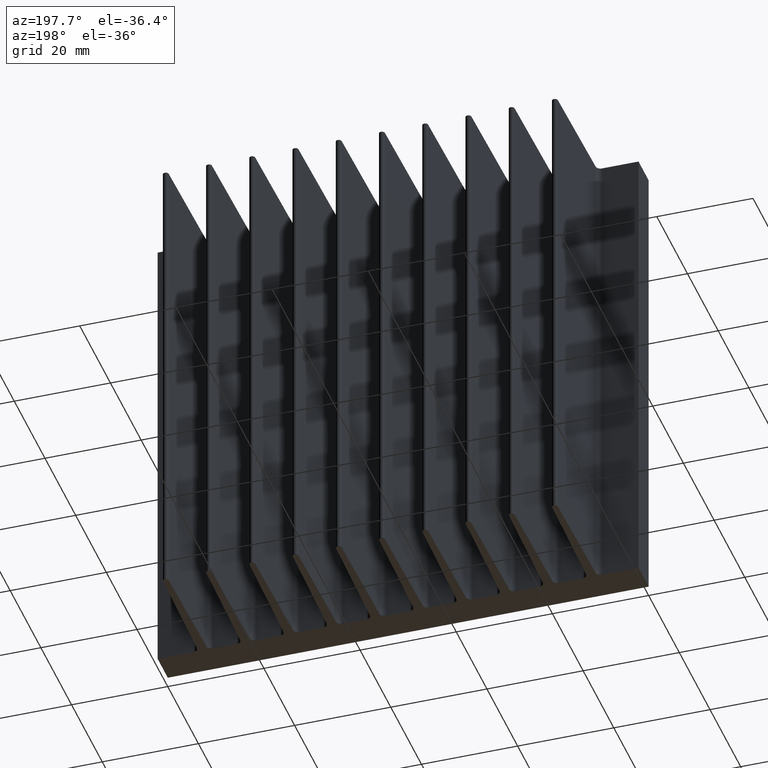
[diagram: clean part render]
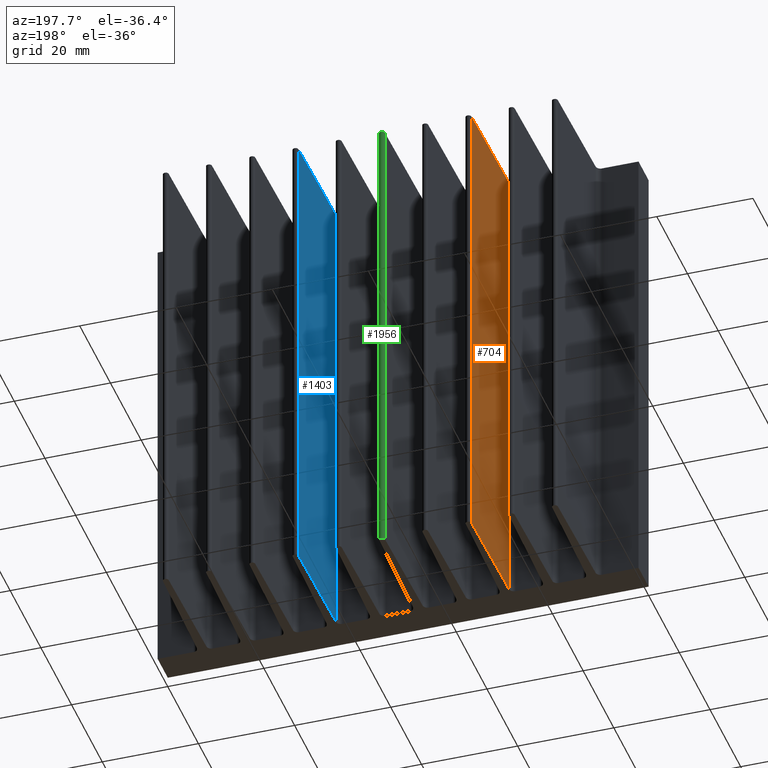
[diagram: same view with three faces highlighted in distinct colors, each labeled with its STEP entity id]
A machine part, auxiliary view with three faces highlighted in distinct colors.
Their STEP definitions:

[orange] entity #704 — the highlighted planar face has unit normal (0.9999, -0.0164, 0).
#45 = DIRECTION ( 'NONE',  ( 0.01639124023930081317, 0.9998656545973652054, 0.0000000000000000000 ) ) ;
#119 = CARTESIAN_POINT ( 'NONE',  ( 26.58467339657067541, 7.576534462238220691, 50.00000000000000000 ) ) ;
#144 = VERTEX_POINT ( 'NONE', #1369 ) ;
#151 = LINE ( 'NONE', #2143, #526 ) ;
#219 = DIRECTION ( 'NONE',  ( -0.01639124023930081317, -0.9998656545973652054, 0.0000000000000000000 ) ) ;
#251 = CARTESIAN_POINT ( 'NONE',  ( 26.96819057020473664, 30.97108205391636204, -50.00000000000000000 ) ) ;
#312 = VERTEX_POINT ( 'NONE', #119 ) ;
#526 = VECTOR ( 'NONE', #1331, 1000.000000000000000 ) ;
#559 = LINE ( 'NONE', #1119, #839 ) ;
#620 = ORIENTED_EDGE ( 'NONE', *, *, #1496, .T. ) ;
#628 = DIRECTION ( 'NONE',  ( 0.9998656545973652054, -0.01639124023930081317, 0.0000000000000000000 ) ) ;
#639 = PLANE ( 'NONE',  #741 ) ;
#640 = ORIENTED_EDGE ( 'NONE', *, *, #1024, .F. ) ;
#655 = EDGE_LOOP ( 'NONE', ( #818, #1891, #640, #620 ) ) ;
#704 = ADVANCED_FACE ( 'NONE', ( #793 ), #639, .F. ) ;
#741 = AXIS2_PLACEMENT_3D ( 'NONE', #831, #628, #45 ) ;
#793 = FACE_OUTER_BOUND ( 'NONE', #655, .T. ) ;
#818 = ORIENTED_EDGE ( 'NONE', *, *, #1174, .T. ) ;
#831 = CARTESIAN_POINT ( 'NONE',  ( 26.96819057020473664, 30.97108205391636204, 50.00000000000000000 ) ) ;
#839 = VECTOR ( 'NONE', #1317, 1000.000000000000000 ) ;
#1005 = CARTESIAN_POINT ( 'NONE',  ( 26.96819057020473309, 30.97108205391636204, -50.00000000000000000 ) ) ;
#1024 = EDGE_CURVE ( 'NONE', #144, #312, #559, .T. ) ;
#1111 = LINE ( 'NONE', #2105, #1981 ) ;
#1119 = CARTESIAN_POINT ( 'NONE',  ( 26.96819057020473664, 30.97108205391636204, 50.00000000000000000 ) ) ;
#1174 = EDGE_CURVE ( 'NONE', #2159, #1492, #1935, .T. ) ;
#1215 = VECTOR ( 'NONE', #219, 1000.000000000000000 ) ;
#1317 = DIRECTION ( 'NONE',  ( -0.01639124023930081317, -0.9998656545973652054, 0.0000000000000000000 ) ) ;
#1331 = DIRECTION ( 'NONE',  ( -0.0000000000000000000, -0.0000000000000000000, -1.000000000000000000 ) ) ;
#1369 = CARTESIAN_POINT ( 'NONE',  ( 26.96819057020473309, 30.97108205391636204, 50.00000000000000000 ) ) ;
#1472 = EDGE_CURVE ( 'NONE', #312, #1492, #151, .T. ) ;
#1492 = VERTEX_POINT ( 'NONE', #2019 ) ;
#1496 = EDGE_CURVE ( 'NONE', #144, #2159, #1111, .T. ) ;
#1891 = ORIENTED_EDGE ( 'NONE', *, *, #1472, .F. ) ;
#1935 = LINE ( 'NONE', #251, #1215 ) ;
#1981 = VECTOR ( 'NONE', #2088, 1000.000000000000000 ) ;
#2019 = CARTESIAN_POINT ( 'NONE',  ( 26.58467339657067541, 7.576534462238220691, -50.00000000000000000 ) ) ;
#2088 = DIRECTION ( 'NONE',  ( -0.0000000000000000000, -0.0000000000000000000, -1.000000000000000000 ) ) ;
#2105 = CARTESIAN_POINT ( 'NONE',  ( 26.96819057020473309, 30.97108205391636204, 50.00000000000000000 ) ) ;
#2143 = CARTESIAN_POINT ( 'NONE',  ( 26.58467339657067541, 7.576534462238220691, 50.00000000000000000 ) ) ;
#2159 = VERTEX_POINT ( 'NONE', #1005 ) ;

[blue] entity #1403 — the highlighted planar face has unit normal (0.9999, -0.0164, 0).
#101 = CARTESIAN_POINT ( 'NONE',  ( 62.93460848062814961, 30.97108205391634783, 50.00000000000000000 ) ) ;
#195 = CARTESIAN_POINT ( 'NONE',  ( 62.93460848062814961, 30.97108205391634783, -50.00000000000000000 ) ) ;
#228 = ORIENTED_EDGE ( 'NONE', *, *, #1639, .F. ) ;
#297 = LINE ( 'NONE', #1982, #827 ) ;
#475 = DIRECTION ( 'NONE',  ( 0.9998656545973652054, -0.01639124023930036908, 0.0000000000000000000 ) ) ;
#493 = PLANE ( 'NONE',  #877 ) ;
#519 = DIRECTION ( 'NONE',  ( -0.01639124023930036561, -0.9998656545973652054, 0.0000000000000000000 ) ) ;
#536 = CARTESIAN_POINT ( 'NONE',  ( 62.93460848062814961, 30.97108205391634783, -50.00000000000000000 ) ) ;
#827 = VECTOR ( 'NONE', #1895, 1000.000000000000000 ) ;
#840 = ORIENTED_EDGE ( 'NONE', *, *, #1765, .T. ) ;
#877 = AXIS2_PLACEMENT_3D ( 'NONE', #1206, #475, #2209 ) ;
#957 = VECTOR ( 'NONE', #1117, 1000.000000000000000 ) ;
#974 = EDGE_LOOP ( 'NONE', ( #840, #228, #1677, #1801 ) ) ;
#1009 = FACE_OUTER_BOUND ( 'NONE', #974, .T. ) ;
#1037 = VECTOR ( 'NONE', #1793, 1000.000000000000114 ) ;
#1117 = DIRECTION ( 'NONE',  ( -0.0000000000000000000, -0.0000000000000000000, -1.000000000000000000 ) ) ;
#1165 = LINE ( 'NONE', #1762, #1037 ) ;
#1206 = CARTESIAN_POINT ( 'NONE',  ( 62.93460848062814961, 30.97108205391634783, 50.00000000000000000 ) ) ;
#1222 = CARTESIAN_POINT ( 'NONE',  ( 62.55109130699410258, 7.576534462238203815, 50.00000000000000000 ) ) ;
#1223 = VERTEX_POINT ( 'NONE', #101 ) ;
#1224 = LINE ( 'NONE', #536, #1277 ) ;
#1274 = CARTESIAN_POINT ( 'NONE',  ( 62.55109130699410258, 7.576534462238203815, -50.00000000000000000 ) ) ;
#1277 = VECTOR ( 'NONE', #519, 1000.000000000000114 ) ;
#1358 = VERTEX_POINT ( 'NONE', #1274 ) ;
#1403 = ADVANCED_FACE ( 'NONE', ( #1009 ), #493, .F. ) ;
#1516 = EDGE_CURVE ( 'NONE', #1223, #2131, #297, .T. ) ;
#1533 = VERTEX_POINT ( 'NONE', #1922 ) ;
#1560 = EDGE_CURVE ( 'NONE', #1223, #1533, #1165, .T. ) ;
#1615 = LINE ( 'NONE', #1222, #957 ) ;
#1639 = EDGE_CURVE ( 'NONE', #1533, #1358, #1615, .T. ) ;
#1677 = ORIENTED_EDGE ( 'NONE', *, *, #1560, .F. ) ;
#1762 = CARTESIAN_POINT ( 'NONE',  ( 62.93460848062814961, 30.97108205391634783, 50.00000000000000000 ) ) ;
#1765 = EDGE_CURVE ( 'NONE', #2131, #1358, #1224, .T. ) ;
#1793 = DIRECTION ( 'NONE',  ( -0.01639124023930036561, -0.9998656545973652054, 0.0000000000000000000 ) ) ;
#1801 = ORIENTED_EDGE ( 'NONE', *, *, #1516, .T. ) ;
#1895 = DIRECTION ( 'NONE',  ( -0.0000000000000000000, -0.0000000000000000000, -1.000000000000000000 ) ) ;
#1922 = CARTESIAN_POINT ( 'NONE',  ( 62.55109130699410258, 7.576534462238203815, 50.00000000000000000 ) ) ;
#1982 = CARTESIAN_POINT ( 'NONE',  ( 62.93460848062814961, 30.97108205391634783, 50.00000000000000000 ) ) ;
#2131 = VERTEX_POINT ( 'NONE', #195 ) ;
#2209 = DIRECTION ( 'NONE',  ( 0.01639124023930036908, 0.9998656545973652054, 0.0000000000000000000 ) ) ;

[green] entity #1956 — the highlighted cylindrical surface (edge-blend (fillet) strip) has radius 0.5994 mm, axis along (-0, -0, -1).
#191 = CARTESIAN_POINT ( 'NONE',  ( 46.15028012243057987, 30.97108205391667468, 50.00000000000000000 ) ) ;
#246 = DIRECTION ( 'NONE',  ( 1.000000000000000000, 0.0000000000000000000, 0.0000000000000000000 ) ) ;
#257 = EDGE_CURVE ( 'NONE', #1839, #528, #1185, .T. ) ;
#263 = DIRECTION ( 'NONE',  ( 0.0000000000000000000, 0.0000000000000000000, 1.000000000000000000 ) ) ;
#335 = VECTOR ( 'NONE', #1289, 1000.000000000000000 ) ;
#391 = AXIS2_PLACEMENT_3D ( 'NONE', #2182, #2162, #2141 ) ;
#528 = VERTEX_POINT ( 'NONE', #1452 ) ;
#541 = CIRCLE ( 'NONE', #391, 0.5994402985070799161 ) ;
#625 = ORIENTED_EDGE ( 'NONE', *, *, #991, .T. ) ;
#626 = EDGE_LOOP ( 'NONE', ( #1455, #1073, #1688, #625 ) ) ;
#761 = EDGE_CURVE ( 'NONE', #2216, #1255, #541, .T. ) ;
#836 = CARTESIAN_POINT ( 'NONE',  ( 45.55083982392350350, 30.97108205391665336, -50.00000000000000000 ) ) ;
#896 = DIRECTION ( 'NONE',  ( -1.000000000000000000, 0.0000000000000000000, 0.0000000000000000000 ) ) ;
#922 = CARTESIAN_POINT ( 'NONE',  ( 45.55083982392350350, 30.97108205391665336, 50.00000000000000000 ) ) ;
#933 = DIRECTION ( 'NONE',  ( -0.0000000000000000000, -0.0000000000000000000, -1.000000000000000000 ) ) ;
#991 = EDGE_CURVE ( 'NONE', #2216, #1839, #1552, .T. ) ;
#1073 = ORIENTED_EDGE ( 'NONE', *, *, #2041, .F. ) ;
#1185 = CIRCLE ( 'NONE', #1292, 0.5994402985070799161 ) ;
#1255 = VERTEX_POINT ( 'NONE', #1344 ) ;
#1283 = VECTOR ( 'NONE', #1426, 1000.000000000000000 ) ;
#1289 = DIRECTION ( 'NONE',  ( -0.0000000000000000000, -0.0000000000000000000, -1.000000000000000000 ) ) ;
#1292 = AXIS2_PLACEMENT_3D ( 'NONE', #836, #263, #246 ) ;
#1318 = AXIS2_PLACEMENT_3D ( 'NONE', #922, #933, #896 ) ;
#1326 = LINE ( 'NONE', #1495, #1283 ) ;
#1334 = CARTESIAN_POINT ( 'NONE',  ( 46.15028012243057987, 30.97108205391667468, 50.00000000000000000 ) ) ;
#1344 = CARTESIAN_POINT ( 'NONE',  ( 44.95139952541642003, 30.97108205391636204, 50.00000000000000000 ) ) ;
#1426 = DIRECTION ( 'NONE',  ( -0.0000000000000000000, -0.0000000000000000000, -1.000000000000000000 ) ) ;
#1452 = CARTESIAN_POINT ( 'NONE',  ( 44.95139952541642003, 30.97108205391636204, -50.00000000000000000 ) ) ;
#1455 = ORIENTED_EDGE ( 'NONE', *, *, #257, .T. ) ;
#1495 = CARTESIAN_POINT ( 'NONE',  ( 44.95139952541642003, 30.97108205391636204, 50.00000000000000000 ) ) ;
#1540 = CYLINDRICAL_SURFACE ( 'NONE', #1318, 0.5994402985070799161 ) ;
#1552 = LINE ( 'NONE', #1334, #335 ) ;
#1688 = ORIENTED_EDGE ( 'NONE', *, *, #761, .F. ) ;
#1707 = FACE_OUTER_BOUND ( 'NONE', #626, .T. ) ;
#1839 = VERTEX_POINT ( 'NONE', #2134 ) ;
#1956 = ADVANCED_FACE ( 'NONE', ( #1707 ), #1540, .T. ) ;
#2041 = EDGE_CURVE ( 'NONE', #1255, #528, #1326, .T. ) ;
#2134 = CARTESIAN_POINT ( 'NONE',  ( 46.15028012243057987, 30.97108205391667468, -50.00000000000000000 ) ) ;
#2141 = DIRECTION ( 'NONE',  ( 1.000000000000000000, 0.0000000000000000000, 0.0000000000000000000 ) ) ;
#2162 = DIRECTION ( 'NONE',  ( 0.0000000000000000000, 0.0000000000000000000, 1.000000000000000000 ) ) ;
#2182 = CARTESIAN_POINT ( 'NONE',  ( 45.55083982392350350, 30.97108205391665336, 50.00000000000000000 ) ) ;
#2216 = VERTEX_POINT ( 'NONE', #191 ) ;